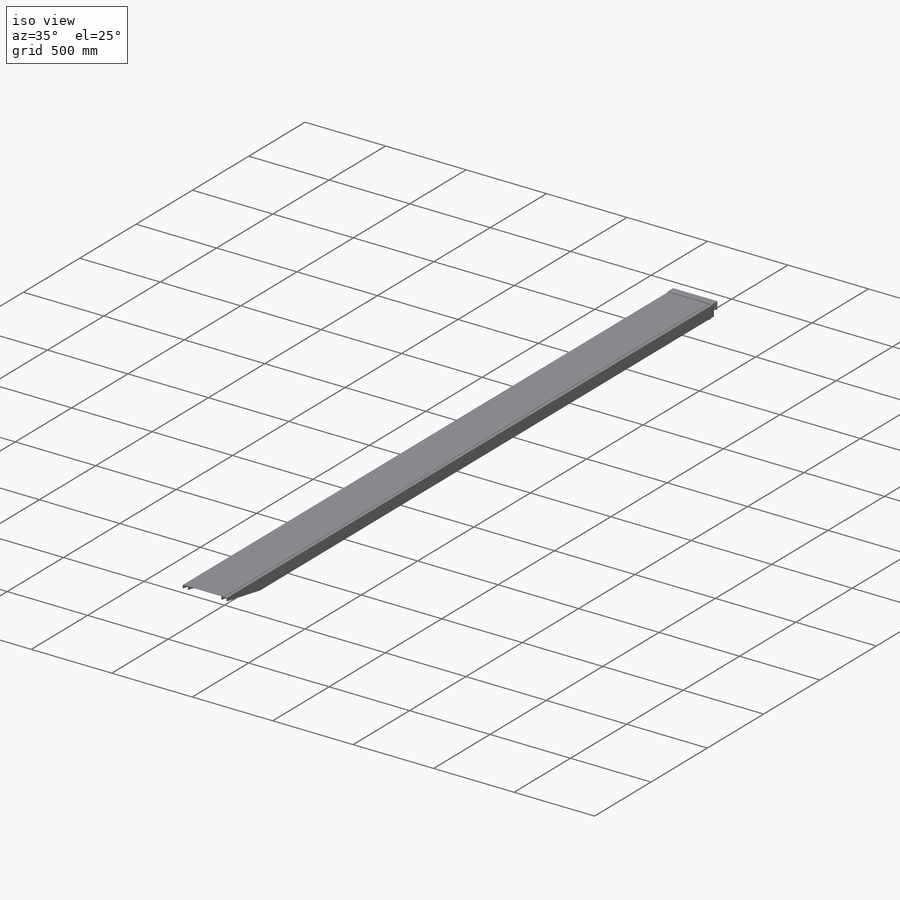
[diagram: iso view]
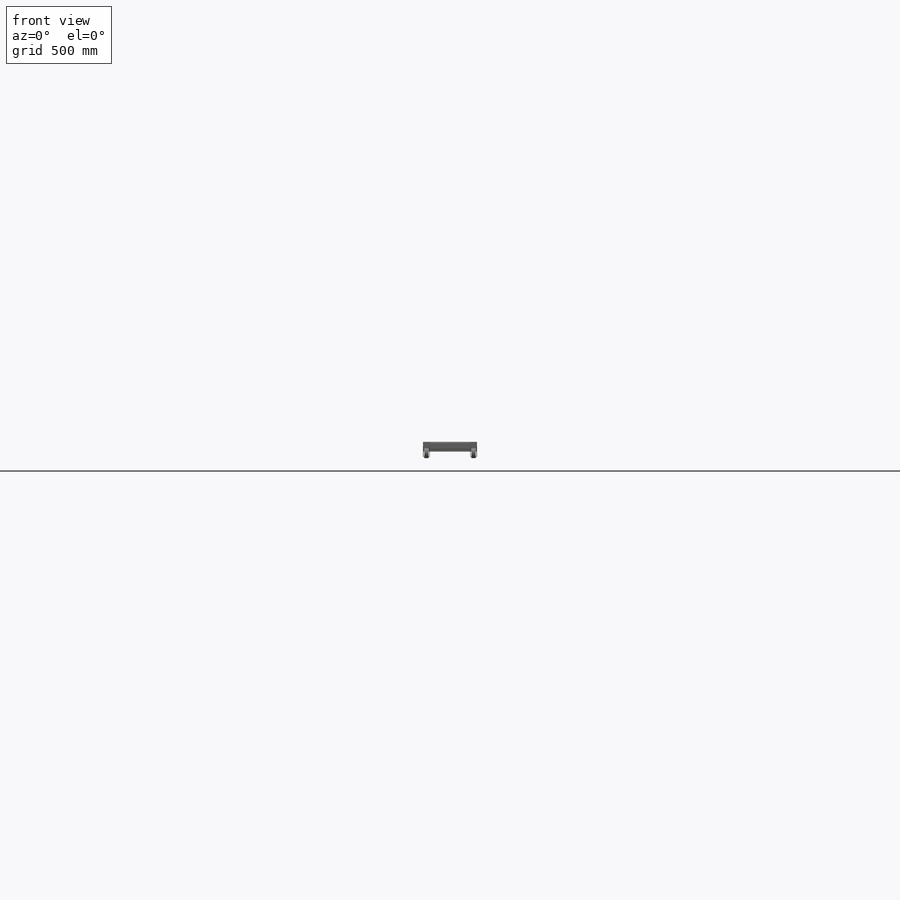
[diagram: front view]
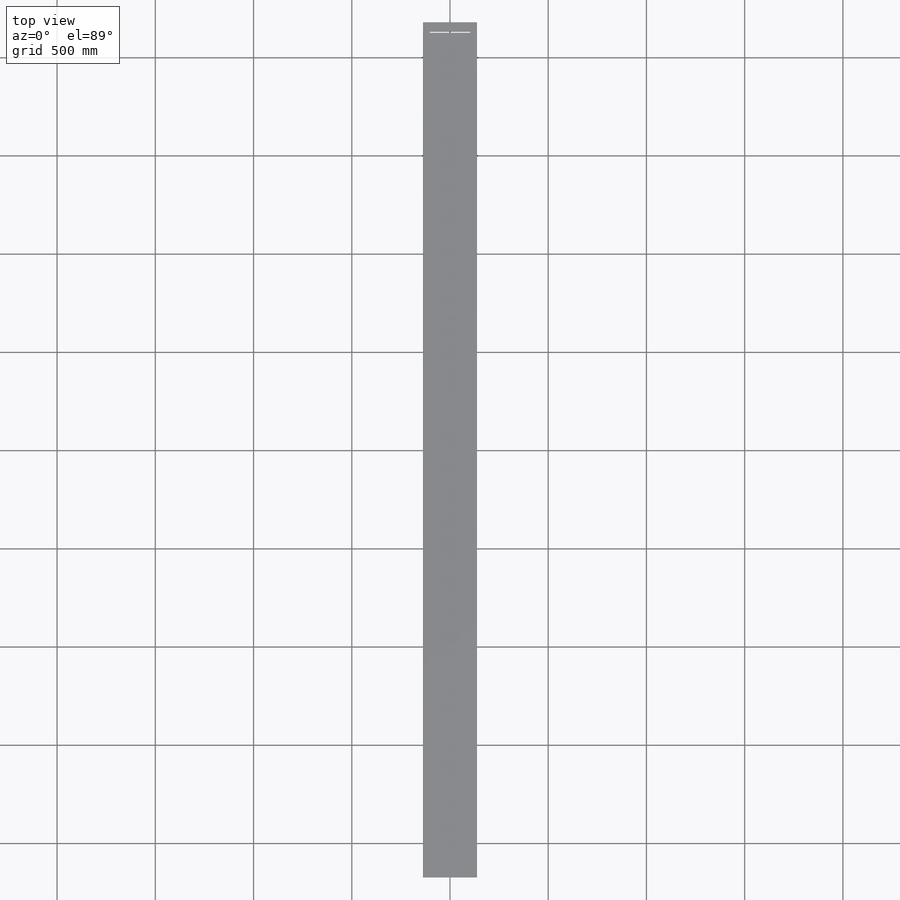
[diagram: top view]
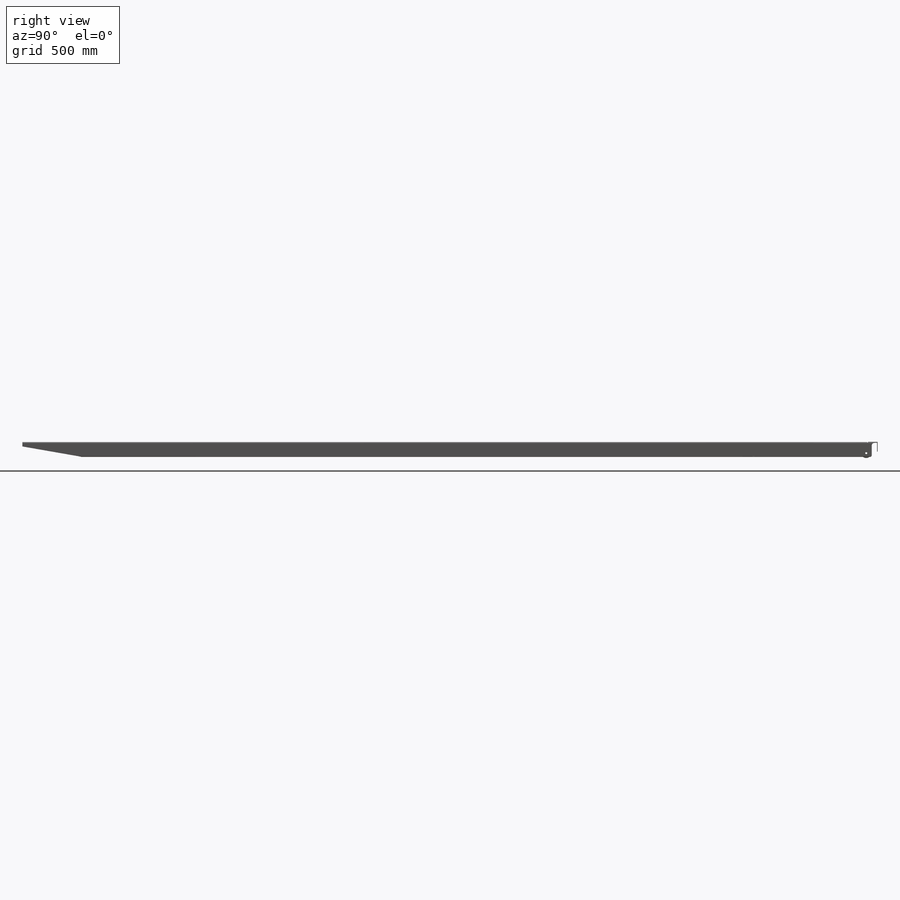
[diagram: right view]
SOLIDWORKS PART (.sldprt)
format: sldprt  version: not decoded by parser v0  size: 474,112 bytes
history: native  units: mm
features: sketch x12, extrude x5, cut_extrude x4, plane x2, material x1 + 4 further entries (+11 scaffold rows collapsed)
feature tree (39):
  scaffold x11  (default folders/planes/origin — collapsed)
  material  "Plain Carbon Steel"
  "Cut-List-Item2"
  "Cut-List-Item3"
  "Cut-List-Item4"
  "Cut-List-Item5"
  sketch  "Sketch1"  dims[D1=4350.0mm D2=240.0mm]
  extrude  "Boss-Extrude1"  Depth=2mm
  sketch  "Sketch2"  dims[D1=278.0mm]
  plane  "Plane1"
  sketch  "Sketch111"  dims[D3=3.0mm D1=73.1mm D2=34.5mm D4=2.2mm]
  sketch  "Sketch12"  dims[c1.D2=27.0mm c1.D3=10.0mm c1.D1=~102.911716mm c2.D1=45.0deg c3.D1=2.0mm]
  cut_extrude  "Cut-ExtrudeMainRailProfile"  [1 undecoded]
  sketch  "Sketch17"  dims[D1=100.0mm D2=50.0mm]
  extrude  "Structural Member2"  [1 undecoded]
  plane  "Plane2"
  sketch  "Sketch19"  dims[c1.D4=3.0mm c1.D5=1.8mm c1.D1=~32.824798mm c1.D2=~34.203992mm c2.D1=35.6mm c2.D2=35.6mm c2.D3=~29.830639mm c2.D4=~29.830639mm c3.D3=1.2mm]
  sketch  "Sketch13"  dims[D1=50.0mm]
  cut_extrude  "Cut-ExtrudeTreadClearance"  [1 undecoded]
  sketch  "Sketch14"  dims[D1=49.0mm D2=3.0mm D3=3.0mm D4=49.0mm]
  extrude  "Boss-ExtrudeAngleIron"  [1 undecoded]
  sketch  "Sketch15"  dims[D1=75.0mm]
  cut_extrude  "Cut-ExtrudeWheelHoles"  [1 undecoded]
  sketch  "Sketch16"  dims[c1.D2=50.0mm c1.D4=10.0mm c1.D1=6.0mm c1.D3=3.0mm c2.D1=6.0mm]
  cut_extrude  "Cut-ExtrudeAxleHoles"  [1 undecoded]
  extrude  "Boss-ExtrudeLeftWheel"  [1 undecoded]
  sketch  "Sketch16<3>"  dims[D1=22.0mm D19=109.0mm]
  extrude  "Boss-ExtrudeRightWheel"  [1 undecoded]
  sketch  "Sketch16<4>"  dims[D1=22.0mm D19=109.0mm]
decode coverage: 13 of 21 modeling features carry decoded parameters; 4 rows unclassified (native names shown)
note: ~ marks probable driven/reference dimensions
note: 8 parameter values undecoded
summary: no parameter record found for 8 features
note: suppression state not decoded; provenance and decode notes live in map.json
